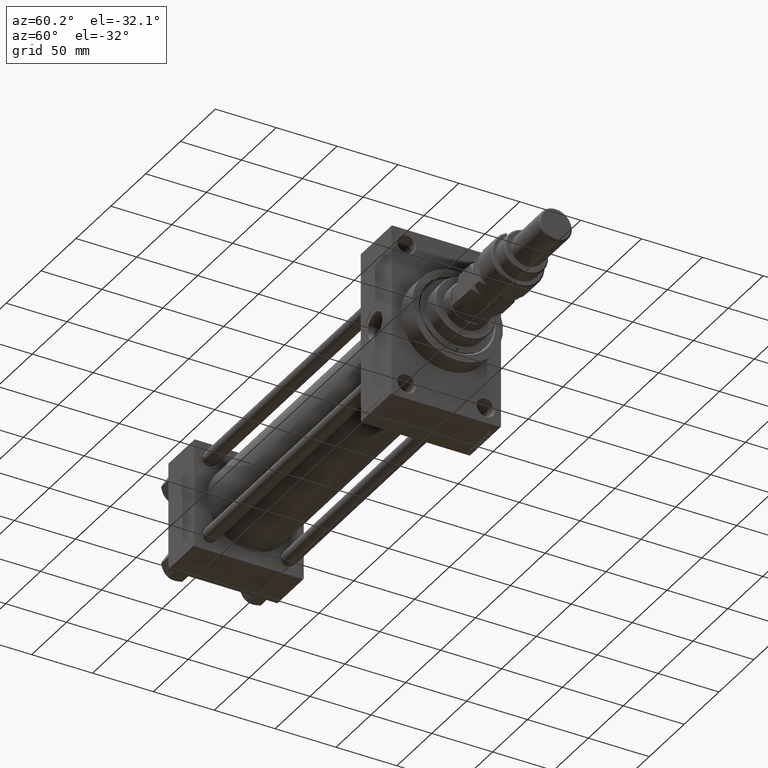
[diagram: clean part render]
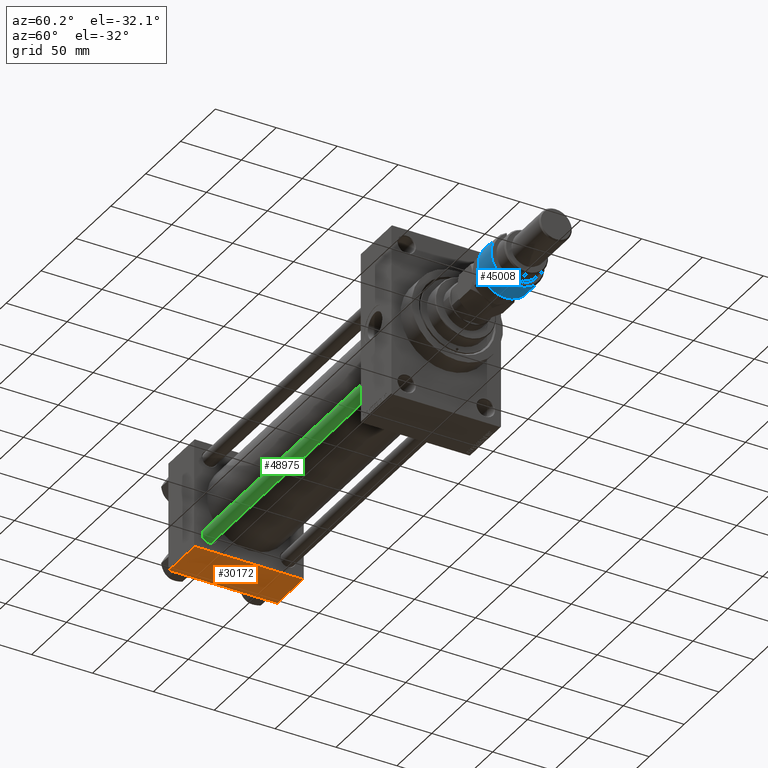
[diagram: same view with three faces highlighted in distinct colors, each labeled with its STEP entity id]
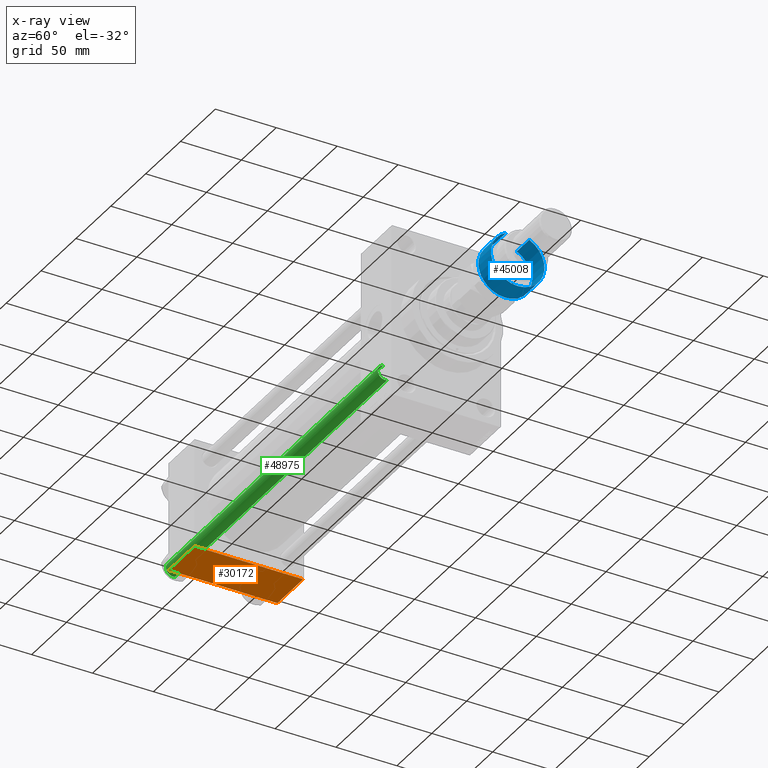
[diagram: x-ray of the same camera — body ghosted, the three highlighted faces saturated]
A machine part, auxiliary view with three faces highlighted in distinct colors.
The next image is the same camera in x-ray (body ghosted, the three faces saturated) — at least one of them is partly hidden behind the body in this view.
Their STEP definitions:

[orange] entity #30172 — the highlighted planar face has unit normal (0, 0, -1).
#2344 = CARTESIAN_POINT ( 'NONE',  ( 37.00000000000000000, -44.49999999999995737, -45.00000000000000000 ) ) ;
#5311 = DIRECTION ( 'NONE',  ( 0.000000000000000000, -1.000000000000000000, -1.541976423090495633E-16 ) ) ;
#5568 = CARTESIAN_POINT ( 'NONE',  ( 0.000000000000000000, 44.99999999999998579, -44.99999999999998579 ) ) ;
#9635 = PLANE ( 'NONE',  #44931 ) ;
#10736 = DIRECTION ( 'NONE',  ( 1.000000000000000000, 0.000000000000000000, 0.000000000000000000 ) ) ;
#11297 = CARTESIAN_POINT ( 'NONE',  ( 37.00000000000000000, 44.99999999999998579, -44.99999999999998579 ) ) ;
#12173 = DIRECTION ( 'NONE',  ( -1.000000000000000000, 0.000000000000000000, 0.000000000000000000 ) ) ;
#13695 = DIRECTION ( 'NONE',  ( 0.000000000000000000, 1.541976423090495880E-16, -1.000000000000000000 ) ) ;
#14053 = EDGE_CURVE ( 'NONE', #16099, #27776, #46161, .T. ) ;
#14362 = VERTEX_POINT ( 'NONE', #25645 ) ;
#16099 = VERTEX_POINT ( 'NONE', #44528 ) ;
#18904 = LINE ( 'NONE', #37706, #20924 ) ;
#20836 = FACE_OUTER_BOUND ( 'NONE', #30282, .T. ) ;
#20924 = VECTOR ( 'NONE', #10736, 1000.000000000000000 ) ;
#21861 = ORIENTED_EDGE ( 'NONE', *, *, #14053, .T. ) ;
#21983 = ORIENTED_EDGE ( 'NONE', *, *, #38657, .F. ) ;
#24139 = LINE ( 'NONE', #39645, #39621 ) ;
#25645 = CARTESIAN_POINT ( 'NONE',  ( 0.000000000000000000, 44.49999999999998579, -44.99999999999998579 ) ) ;
#25862 = CARTESIAN_POINT ( 'NONE',  ( 0.000000000000000000, -44.49999999999995737, -45.00000000000000000 ) ) ;
#26657 = EDGE_CURVE ( 'NONE', #27776, #31643, #24139, .T. ) ;
#26821 = DIRECTION ( 'NONE',  ( 0.000000000000000000, -1.000000000000000000, -1.541976423090495633E-16 ) ) ;
#27776 = VERTEX_POINT ( 'NONE', #2344 ) ;
#27931 = VECTOR ( 'NONE', #26821, 1000.000000000000000 ) ;
#30172 = ADVANCED_FACE ( 'NONE', ( #20836 ), #9635, .T. ) ;
#30282 = EDGE_LOOP ( 'NONE', ( #21983, #47892, #21861, #38297 ) ) ;
#31643 = VERTEX_POINT ( 'NONE', #25862 ) ;
#36329 = LINE ( 'NONE', #5568, #39408 ) ;
#37706 = CARTESIAN_POINT ( 'NONE',  ( 37.00000000000000000, 44.49999999999998579, -44.99999999999998579 ) ) ;
#38297 = ORIENTED_EDGE ( 'NONE', *, *, #26657, .T. ) ;
#38657 = EDGE_CURVE ( 'NONE', #14362, #31643, #36329, .T. ) ;
#39408 = VECTOR ( 'NONE', #5311, 1000.000000000000000 ) ;
#39621 = VECTOR ( 'NONE', #12173, 1000.000000000000000 ) ;
#39645 = CARTESIAN_POINT ( 'NONE',  ( 0.000000000000000000, -44.49999999999998579, -45.00000000000000000 ) ) ;
#44224 = DIRECTION ( 'NONE',  ( 0.000000000000000000, 1.000000000000000000, 1.541976423090495880E-16 ) ) ;
#44528 = CARTESIAN_POINT ( 'NONE',  ( 37.00000000000000000, 44.49999999999998579, -44.99999999999998579 ) ) ;
#44931 = AXIS2_PLACEMENT_3D ( 'NONE', #48808, #13695, #44224 ) ;
#46161 = LINE ( 'NONE', #11297, #27931 ) ;
#46238 = EDGE_CURVE ( 'NONE', #14362, #16099, #18904, .T. ) ;
#47892 = ORIENTED_EDGE ( 'NONE', *, *, #46238, .T. ) ;
#48808 = CARTESIAN_POINT ( 'NONE',  ( 37.00000000000000000, 44.99999999999998579, -44.99999999999998579 ) ) ;

[blue] entity #45008 — the highlighted cylindrical surface (edge-blend (fillet) strip) has radius 22 mm, axis along (-1, -0, 0).
#955 = ORIENTED_EDGE ( 'NONE', *, *, #15097, .T. ) ;
#1683 = DIRECTION ( 'NONE',  ( -1.000000000000000000, 0.000000000000000000, 0.000000000000000000 ) ) ;
#3706 = AXIS2_PLACEMENT_3D ( 'NONE', #28263, #48099, #8916 ) ;
#5533 = VERTEX_POINT ( 'NONE', #20455 ) ;
#5728 = CARTESIAN_POINT ( 'NONE',  ( -19.84313483298442904, 9.500000000000000000, 23.00000000000000000 ) ) ;
#7189 = DIRECTION ( 'NONE',  ( -0.000000000000000000, -0.000000000000000000, 1.000000000000000000 ) ) ;
#7541 = VERTEX_POINT ( 'NONE', #33494 ) ;
#8916 = DIRECTION ( 'NONE',  ( 1.000000000000000000, 0.000000000000000000, 0.000000000000000000 ) ) ;
#9654 = EDGE_CURVE ( 'NONE', #43987, #5533, #26161, .T. ) ;
#10495 = DIRECTION ( 'NONE',  ( -0.000000000000000000, -0.000000000000000000, -1.000000000000000000 ) ) ;
#11007 = VERTEX_POINT ( 'NONE', #22310 ) ;
#11385 = DIRECTION ( 'NONE',  ( 1.000000000000000000, 0.000000000000000000, 0.000000000000000000 ) ) ;
#13110 = CARTESIAN_POINT ( 'NONE',  ( 0.000000000000000000, 0.000000000000000000, 20.00000000000000000 ) ) ;
#13366 = FACE_OUTER_BOUND ( 'NONE', #33526, .T. ) ;
#14808 = CARTESIAN_POINT ( 'NONE',  ( -19.84313483298442193, -9.500000000000005329, 23.00000000000000000 ) ) ;
#15097 = EDGE_CURVE ( 'NONE', #7541, #24804, #37704, .T. ) ;
#15145 = EDGE_CURVE ( 'NONE', #24804, #43987, #48282, .T. ) ;
#16160 = DIRECTION ( 'NONE',  ( -0.000000000000000000, -0.000000000000000000, -1.000000000000000000 ) ) ;
#16405 = LINE ( 'NONE', #5728, #21732 ) ;
#16419 = AXIS2_PLACEMENT_3D ( 'NONE', #22605, #23095, #11385 ) ;
#17902 = CARTESIAN_POINT ( 'NONE',  ( 0.000000000000000000, 0.000000000000000000, 1.000000000000000888 ) ) ;
#18226 = AXIS2_PLACEMENT_3D ( 'NONE', #17902, #7189, #26020 ) ;
#19911 = CIRCLE ( 'NONE', #3706, 22.00000000000000000 ) ;
#20297 = ORIENTED_EDGE ( 'NONE', *, *, #24920, .F. ) ;
#20455 = CARTESIAN_POINT ( 'NONE',  ( -19.84313483298442904, 9.500000000000000000, 1.000000000000000888 ) ) ;
#21732 = VECTOR ( 'NONE', #16160, 1000.000000000000000 ) ;
#22310 = CARTESIAN_POINT ( 'NONE',  ( -19.84313483298442904, 9.500000000000000000, 18.99999999999998579 ) ) ;
#22605 = CARTESIAN_POINT ( 'NONE',  ( 0.000000000000000000, 0.000000000000000000, 1.000000000000000888 ) ) ;
#23095 = DIRECTION ( 'NONE',  ( -0.000000000000000000, -0.000000000000000000, 1.000000000000000000 ) ) ;
#24804 = VERTEX_POINT ( 'NONE', #38810 ) ;
#24920 = EDGE_CURVE ( 'NONE', #11007, #5533, #16405, .T. ) ;
#25309 = ORIENTED_EDGE ( 'NONE', *, *, #9654, .T. ) ;
#26020 = DIRECTION ( 'NONE',  ( 1.000000000000000000, 0.000000000000000000, 0.000000000000000000 ) ) ;
#26161 = CIRCLE ( 'NONE', #16419, 22.00000000000000000 ) ;
#28108 = ORIENTED_EDGE ( 'NONE', *, *, #15145, .T. ) ;
#28263 = CARTESIAN_POINT ( 'NONE',  ( 0.000000000000000000, 0.000000000000000000, 18.99999999999998579 ) ) ;
#30423 = CARTESIAN_POINT ( 'NONE',  ( 22.00000000000000000, 0.000000000000000000, 1.000000000000000888 ) ) ;
#33494 = CARTESIAN_POINT ( 'NONE',  ( -19.84313483298442193, -9.500000000000005329, 18.99999999999998579 ) ) ;
#33526 = EDGE_LOOP ( 'NONE', ( #20297, #38536, #955, #28108, #25309 ) ) ;
#37704 = LINE ( 'NONE', #14808, #41757 ) ;
#37915 = AXIS2_PLACEMENT_3D ( 'NONE', #13110, #44402, #1683 ) ;
#38374 = EDGE_CURVE ( 'NONE', #11007, #7541, #19911, .T. ) ;
#38536 = ORIENTED_EDGE ( 'NONE', *, *, #38374, .T. ) ;
#38810 = CARTESIAN_POINT ( 'NONE',  ( -19.84313483298442193, -9.500000000000005329, 1.000000000000000888 ) ) ;
#41757 = VECTOR ( 'NONE', #10495, 1000.000000000000000 ) ;
#43987 = VERTEX_POINT ( 'NONE', #30423 ) ;
#44402 = DIRECTION ( 'NONE',  ( -0.000000000000000000, -0.000000000000000000, -1.000000000000000000 ) ) ;
#45008 = ADVANCED_FACE ( 'NONE', ( #13366 ), #47974, .T. ) ;
#47974 = CYLINDRICAL_SURFACE ( 'NONE', #37915, 22.00000000000000000 ) ;
#48099 = DIRECTION ( 'NONE',  ( 0.000000000000000000, 0.000000000000000000, -1.000000000000000000 ) ) ;
#48282 = CIRCLE ( 'NONE', #18226, 22.00000000000000000 ) ;

[green] entity #48975 — the highlighted cylindrical surface (edge-blend (fillet) strip) has radius 6 mm, axis along (-1, 0, 0).
#14 = CIRCLE ( 'NONE', #45507, 6.000000000000000888 ) ;
#268 = VERTEX_POINT ( 'NONE', #36234 ) ;
#1390 = CYLINDRICAL_SURFACE ( 'NONE', #40465, 6.000000000000000888 ) ;
#2614 = CARTESIAN_POINT ( 'NONE',  ( 0.000000000000000000, 0.000000000000000000, 304.5000000000000000 ) ) ;
#2740 = EDGE_CURVE ( 'NONE', #268, #27934, #14, .T. ) ;
#3168 = ORIENTED_EDGE ( 'NONE', *, *, #2740, .T. ) ;
#6651 = CARTESIAN_POINT ( 'NONE',  ( 6.000000000000000888, 7.347880794884120722E-16, 304.5000000000000000 ) ) ;
#10723 = LINE ( 'NONE', #22705, #11636 ) ;
#11287 = ORIENTED_EDGE ( 'NONE', *, *, #34372, .T. ) ;
#11636 = VECTOR ( 'NONE', #45578, 1000.000000000000000 ) ;
#13064 = FACE_OUTER_BOUND ( 'NONE', #38771, .T. ) ;
#13712 = CARTESIAN_POINT ( 'NONE',  ( -6.000000000000000888, 0.000000000000000000, 0.5000000000000004441 ) ) ;
#19974 = CIRCLE ( 'NONE', #43525, 6.000000000000000888 ) ;
#22239 = EDGE_CURVE ( 'NONE', #42289, #36803, #19974, .T. ) ;
#22705 = CARTESIAN_POINT ( 'NONE',  ( 6.000000000000000888, 7.347880794884120722E-16, 305.0000000000000000 ) ) ;
#22957 = DIRECTION ( 'NONE',  ( 1.000000000000000000, 0.000000000000000000, 0.000000000000000000 ) ) ;
#24854 = EDGE_CURVE ( 'NONE', #42289, #27934, #30907, .T. ) ;
#25502 = DIRECTION ( 'NONE',  ( 1.000000000000000000, 0.000000000000000000, 0.000000000000000000 ) ) ;
#27365 = CARTESIAN_POINT ( 'NONE',  ( -6.000000000000000888, 0.000000000000000000, 305.0000000000000000 ) ) ;
#27934 = VERTEX_POINT ( 'NONE', #13712 ) ;
#28591 = DIRECTION ( 'NONE',  ( -1.000000000000000000, 0.000000000000000000, 0.000000000000000000 ) ) ;
#30153 = ORIENTED_EDGE ( 'NONE', *, *, #22239, .T. ) ;
#30907 = LINE ( 'NONE', #27365, #49324 ) ;
#32131 = DIRECTION ( 'NONE',  ( -0.000000000000000000, -0.000000000000000000, -1.000000000000000000 ) ) ;
#33723 = CARTESIAN_POINT ( 'NONE',  ( -6.000000000000000888, 0.000000000000000000, 304.5000000000000000 ) ) ;
#34372 = EDGE_CURVE ( 'NONE', #36803, #268, #10723, .T. ) ;
#35379 = CARTESIAN_POINT ( 'NONE',  ( 0.000000000000000000, 0.000000000000000000, 0.5000000000000004441 ) ) ;
#36234 = CARTESIAN_POINT ( 'NONE',  ( 6.000000000000000888, 7.347880794884120722E-16, 0.5000000000000004441 ) ) ;
#36803 = VERTEX_POINT ( 'NONE', #6651 ) ;
#37735 = ORIENTED_EDGE ( 'NONE', *, *, #24854, .F. ) ;
#38771 = EDGE_LOOP ( 'NONE', ( #30153, #11287, #3168, #37735 ) ) ;
#40465 = AXIS2_PLACEMENT_3D ( 'NONE', #48190, #32131, #28591 ) ;
#42289 = VERTEX_POINT ( 'NONE', #33723 ) ;
#43525 = AXIS2_PLACEMENT_3D ( 'NONE', #2614, #49150, #25502 ) ;
#45507 = AXIS2_PLACEMENT_3D ( 'NONE', #35379, #50159, #22957 ) ;
#45578 = DIRECTION ( 'NONE',  ( -0.000000000000000000, -0.000000000000000000, -1.000000000000000000 ) ) ;
#48190 = CARTESIAN_POINT ( 'NONE',  ( 0.000000000000000000, 0.000000000000000000, 305.0000000000000000 ) ) ;
#48975 = ADVANCED_FACE ( 'NONE', ( #13064 ), #1390, .T. ) ;
#49150 = DIRECTION ( 'NONE',  ( 0.000000000000000000, 0.000000000000000000, -1.000000000000000000 ) ) ;
#49324 = VECTOR ( 'NONE', #50262, 1000.000000000000000 ) ;
#50159 = DIRECTION ( 'NONE',  ( -0.000000000000000000, -0.000000000000000000, 1.000000000000000000 ) ) ;
#50262 = DIRECTION ( 'NONE',  ( -0.000000000000000000, -0.000000000000000000, -1.000000000000000000 ) ) ;